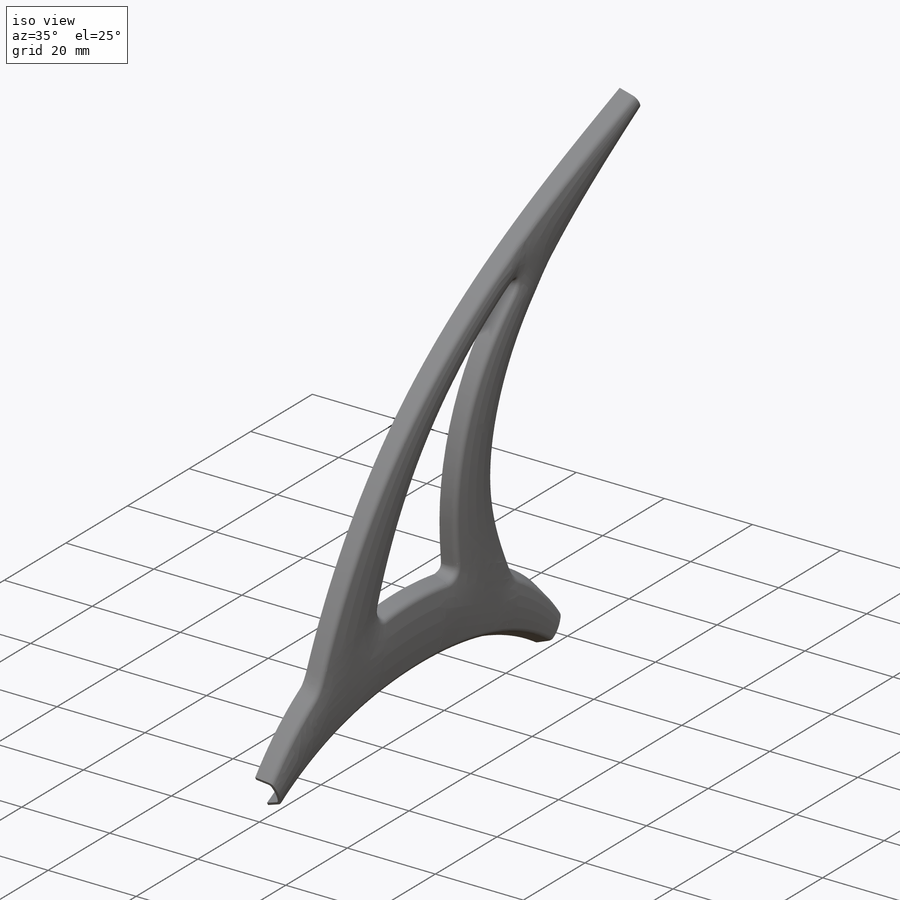
[diagram: iso view]
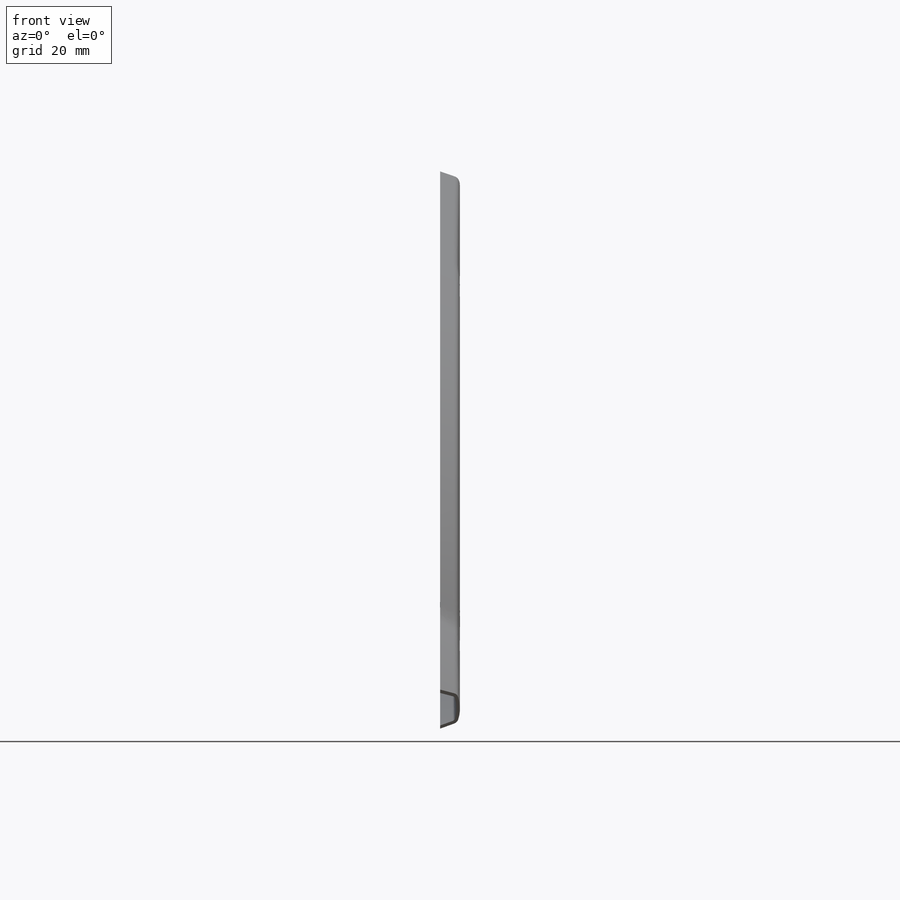
[diagram: front view]
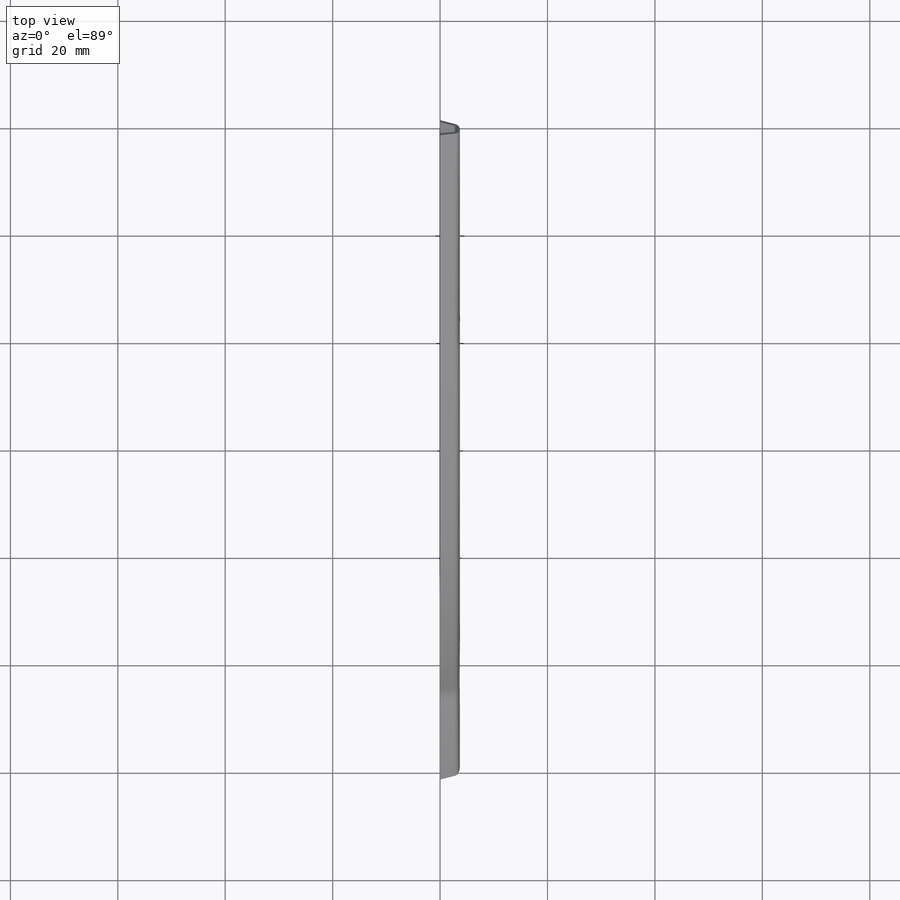
[diagram: top view]
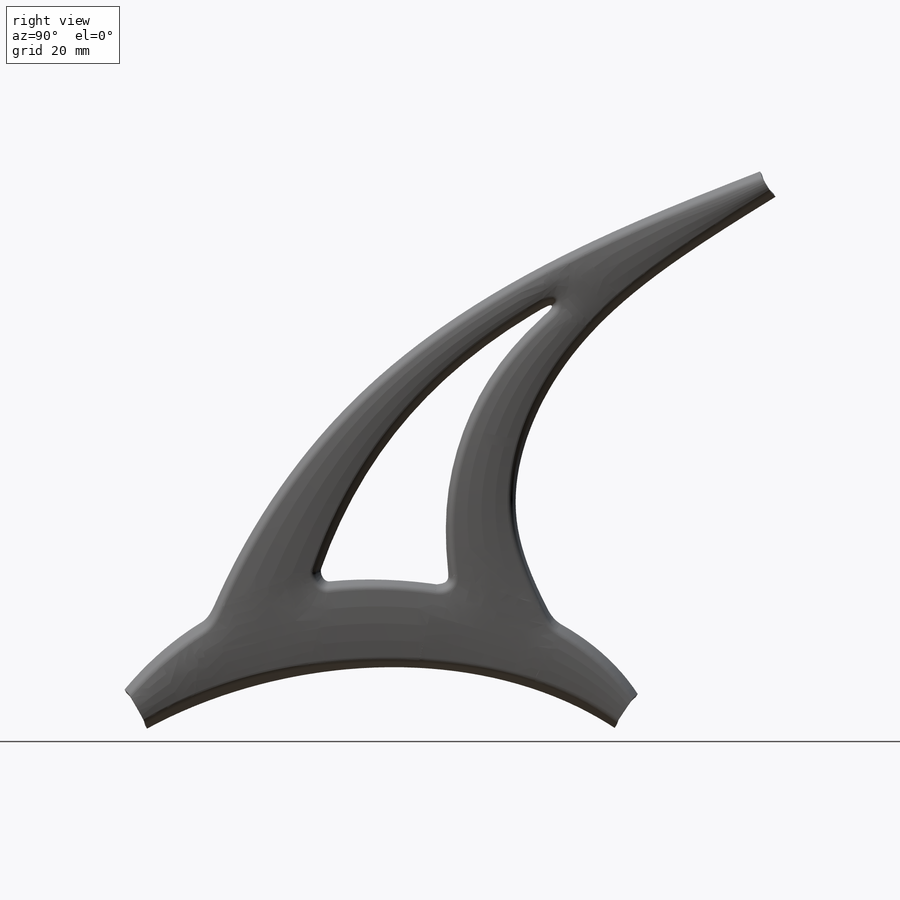
[diagram: right view]
SOLIDWORKS PART (.sldprt)
format: sldprt  version: not decoded by parser v0  size: 2,380,800 bytes
history: native  units: mm
features: sketch x35, plane x14, fillet x2, material x1, delete_body x1 (+12 scaffold rows collapsed; 1 parser-record rows omitted)
feature tree (66):
  scaffold x12  (default folders/planes/origin — collapsed)
  material  "Material <not specified>"
  plane  "Front XY"
  plane  "Top XZ"
  plane  "Right YZ"
  sketch  "Sketch1"
  parser-record x1  (decoder bookkeeping rows leaked as tree rows — omitted from the tree; the rows remain in map.json)
  plane  "Plane1"
  plane  "Plane2"
  plane  "Plane3"
  plane  "Plane4"
  plane  "Plane5"
  plane  "Plane6"
  plane  "Plane7"
  plane  "Plane8"
  sketch  "Sketch2"  dims[c1.D1=3.175mm c1.D2=~3.085032mm c2.D2=110.0deg c2.D3=0.508mm]
  plane  "Plane9"
  sketch  "Sketch4"  dims[c1.D1=3.175mm c1.D2=~3.085032mm c2.D2=110.0deg c2.D3=0.508mm]
  sketch  "Sketch3"  dims[c1.D1=3.175mm c1.D2=~3.085032mm c2.D2=110.0deg c2.D3=0.508mm]
  sketch  "Sketch5"  dims[c1.D1=3.175mm c1.D2=~3.085032mm c2.D2=110.0deg c2.D3=0.508mm]
  sketch  "Sketch6"  dims[c1.D1=3.175mm c1.D2=~3.085032mm c2.D2=110.0deg c2.D3=0.508mm]
  sketch  "Sketch1<4>"
  sketch  "Sketch7"  dims[c1.D1=3.175mm c1.D2=~3.085032mm c2.D2=110.0deg c2.D3=0.508mm]
  sketch  "Sketch8"  dims[c1.D1=3.175mm c1.D2=~3.085032mm c2.D2=110.0deg c2.D3=0.508mm]
  sketch  "Sketch1<5>"
  sketch  "Sketch9"  dims[c1.D1=3.175mm c1.D2=~3.085032mm c2.D2=110.0deg c2.D3=0.508mm]
  sketch  "Sketch10"  dims[c1.D1=3.175mm c1.D2=~3.085032mm c2.D2=110.0deg c2.D3=0.508mm]
  sketch  "Sketch1<6>"
  plane  "Plane10"
  sketch  "Sketch11"
  sketch  "Sketch12"
  plane  "Plane11"
  sketch  "Sketch13"
  sketch  "3DSketch1"
  sketch  "Sketch1<7>"
  sketch  "Sketch1<8>"
  sketch  "3DSketch1<3>"
  sketch  "3DSketch4"
  sketch  "Sketch14"
  sketch  "Sketch15"
  sketch  "3DSketch3"
  sketch  "Sketch16"
  sketch  "Sketch16<3>"
  sketch  "3DSketch3<3>"
  sketch  "3DSketch3<4>"
  sketch  "Sketch16<4>"
  sketch  "Sketch16<5>"
  sketch  "3DSketch3<5>"
  sketch  "Sketch1<10>"
  sketch  "Sketch1<11>"
  sketch  "3DSketch4<3>"
  fillet  "Fillet1"  Radius=1.27mm
  fillet  "Fillet2"  Radius=1.27mm
  sketch  "Sketch17"  dims[c1.D1=3.175mm c1.D2=5.0deg c2.D1=3.175mm c2.D2=5.0deg c3.D1=3.175mm c3.D2=5.0deg]
  delete_body  "Body-Delete2"  thickness=45.183511mm
decode coverage: 13 of 38 modeling features carry decoded parameters
note: ~ marks probable driven/reference dimensions
note: suppression state not decoded; provenance and decode notes live in map.json
